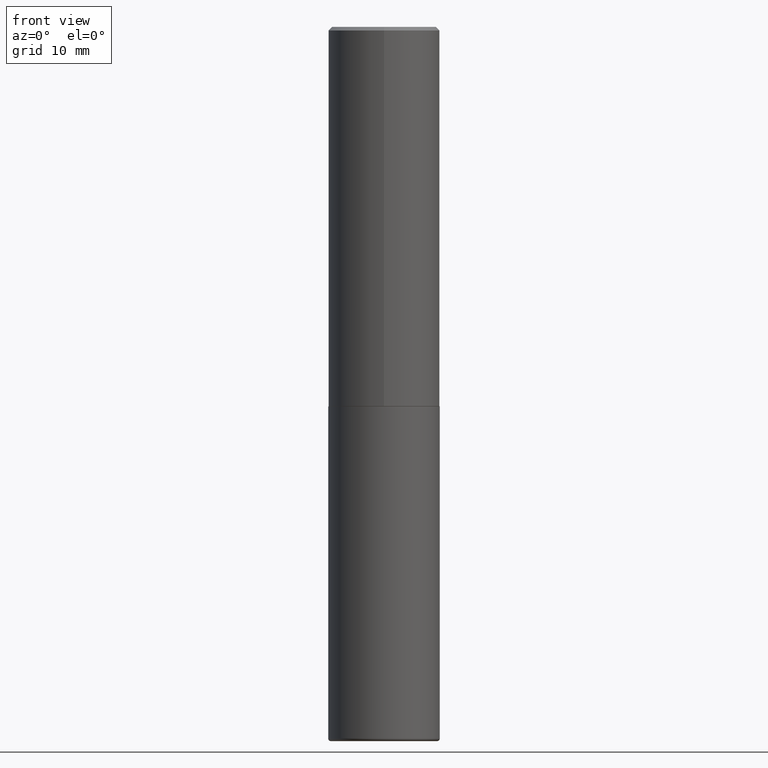
[diagram: clean part render]
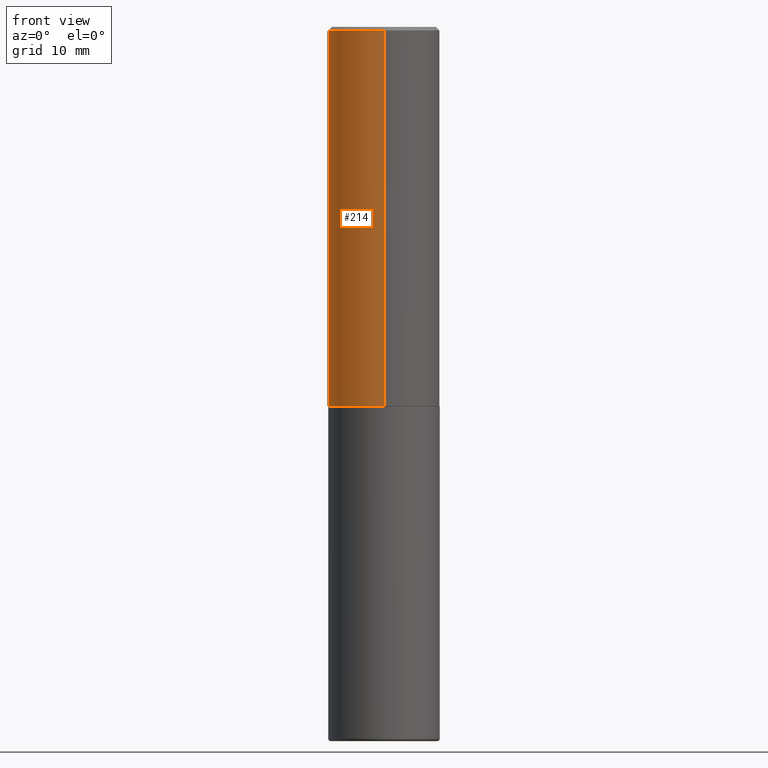
[diagram: same view with one face highlighted and labeled with its STEP entity id]
A machine part, front view. The second image highlights one B-rep face of the part: STEP entity #214.
In plain terms, the highlighted cylindrical surface (partial cylindrical patch) has radius 7.9375 mm, axis along (-0, 0, 1).
Its self-contained STEP definition (entity closure, byte-faithful):
#2 = CIRCLE ( 'NONE', #49, 0.3125000000000002776 ) ;
#5 = DIRECTION ( 'NONE',  ( -6.982962677686265922E-15, -1.000000000000000000, 3.496765431890253764E-15 ) ) ;
#23 = LINE ( 'NONE', #318, #400 ) ;
#24 = ORIENTED_EDGE ( 'NONE', *, *, #342, .T. ) ;
#33 = CARTESIAN_POINT ( 'NONE',  ( 0.000000000000000000, 0.000000000000000000, 0.000000000000000000 ) ) ;
#34 = ORIENTED_EDGE ( 'NONE', *, *, #78, .T. ) ;
#48 = DIRECTION ( 'NONE',  ( -2.444852431726452614E-29, 3.492364022149836358E-15, 1.000000000000000000 ) ) ;
#49 = AXIS2_PLACEMENT_3D ( 'NONE', #365, #275, #5 ) ;
#66 = FACE_OUTER_BOUND ( 'NONE', #391, .T. ) ;
#72 = VERTEX_POINT ( 'NONE', #343 ) ;
#78 = EDGE_CURVE ( 'NONE', #168, #233, #23, .T. ) ;
#87 = CYLINDRICAL_SURFACE ( 'NONE', #386, 0.3125000000000001665 ) ;
#100 = ORIENTED_EDGE ( 'NONE', *, *, #331, .F. ) ;
#110 = CARTESIAN_POINT ( 'NONE',  ( 2.182175836776958741E-15, 0.3124999999999999445, -0.02000000000000116268 ) ) ;
#135 = DIRECTION ( 'NONE',  ( -6.982962677686265133E-15, -1.000000000000000000, 3.496765431890256920E-15 ) ) ;
#165 = DIRECTION ( 'NONE',  ( -6.982962677686265133E-15, -1.000000000000000000, 3.492364022149836358E-15 ) ) ;
#168 = VERTEX_POINT ( 'NONE', #226 ) ;
#184 = CARTESIAN_POINT ( 'NONE',  ( 4.889704863452922148E-31, -6.984728044299695791E-17, -0.02000000000000006981 ) ) ;
#210 = AXIS2_PLACEMENT_3D ( 'NONE', #184, #217, #135 ) ;
#214 = ADVANCED_FACE ( 'NONE', ( #66 ), #87, .T. ) ;
#217 = DIRECTION ( 'NONE',  ( -2.444852431726452894E-29, 3.492364022149836358E-15, 1.000000000000000000 ) ) ;
#218 = EDGE_CURVE ( 'NONE', #245, #233, #287, .T. ) ;
#226 = CARTESIAN_POINT ( 'NONE',  ( -2.182175836776908254E-15, -0.3125000000000077161, -2.123999999999998334 ) ) ;
#227 = ORIENTED_EDGE ( 'NONE', *, *, #218, .F. ) ;
#233 = VERTEX_POINT ( 'NONE', #366 ) ;
#245 = VERTEX_POINT ( 'NONE', #110 ) ;
#270 = CARTESIAN_POINT ( 'NONE',  ( 2.220446049250313475E-15, 0.3125000000000001665, -1.091363756921824478E-15 ) ) ;
#275 = DIRECTION ( 'NONE',  ( -2.444852431726452894E-29, 3.492364022149836358E-15, 1.000000000000000000 ) ) ;
#287 = CIRCLE ( 'NONE', #210, 0.3125000000000000000 ) ;
#296 = VECTOR ( 'NONE', #48, 39.37007874015748143 ) ;
#318 = CARTESIAN_POINT ( 'NONE',  ( -2.182175836776959136E-15, -0.3125000000000001665, 1.091363756921824478E-15 ) ) ;
#331 = EDGE_CURVE ( 'NONE', #72, #245, #355, .T. ) ;
#342 = EDGE_CURVE ( 'NONE', #72, #168, #2, .T. ) ;
#343 = CARTESIAN_POINT ( 'NONE',  ( 2.220446049250340297E-15, 0.3124999999999928391, -2.124000000000000554 ) ) ;
#348 = DIRECTION ( 'NONE',  ( -2.444852431726452614E-29, 3.492364022149836358E-15, 1.000000000000000000 ) ) ;
#355 = LINE ( 'NONE', #270, #296 ) ;
#365 = CARTESIAN_POINT ( 'NONE',  ( 5.192866564986985411E-29, -7.417781183046251262E-15, -2.123999999999999666 ) ) ;
#366 = CARTESIAN_POINT ( 'NONE',  ( -2.143905624303602824E-15, -0.3125000000000000555, -0.01999999999999897693 ) ) ;
#374 = DIRECTION ( 'NONE',  ( -2.444852431726452894E-29, 3.492364022149836358E-15, 1.000000000000000000 ) ) ;
#386 = AXIS2_PLACEMENT_3D ( 'NONE', #33, #374, #165 ) ;
#391 = EDGE_LOOP ( 'NONE', ( #100, #24, #34, #227 ) ) ;
#400 = VECTOR ( 'NONE', #348, 39.37007874015748143 ) ;